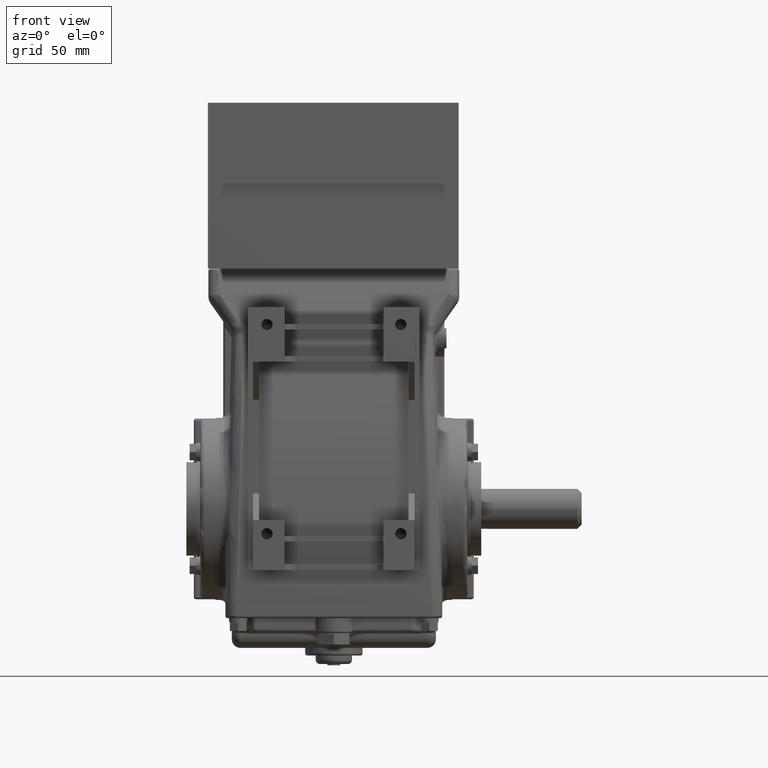
[diagram: clean part render]
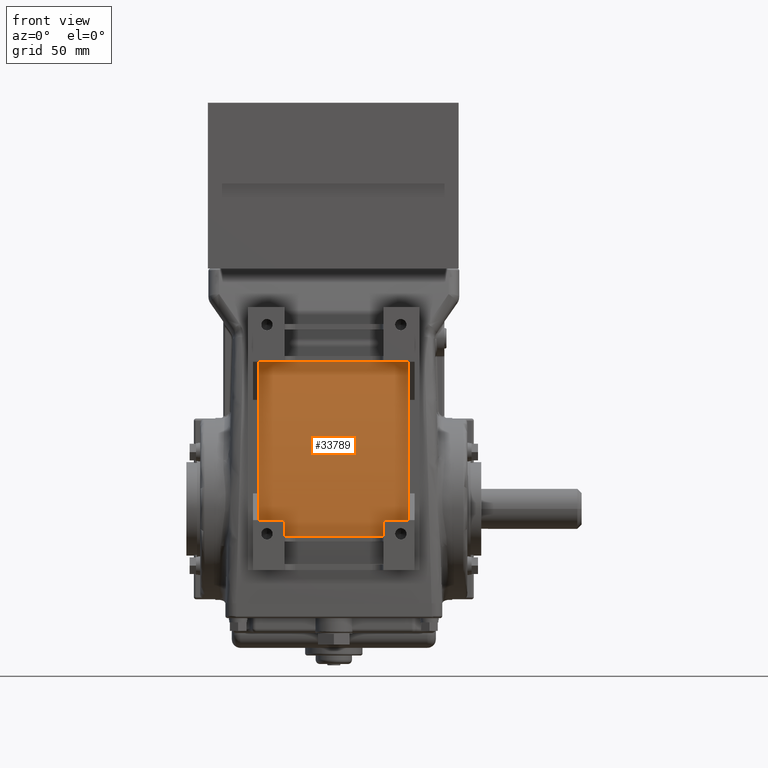
[diagram: same view with one face highlighted and labeled with its STEP entity id]
A machine part, front view. The second image highlights one B-rep face of the part: STEP entity #33789.
In plain terms, the highlighted cylindrical surface (partial cylindrical patch) has radius 634.291 mm, axis along (-1, -0, -0).
Its self-contained STEP definition (entity closure, byte-faithful):
#33388 = EDGE_CURVE ( 'NONE', #33470, #33398, #39204, .T. ) ;
#33398 = VERTEX_POINT ( 'NONE', #39265 ) ;
#33400 = EDGE_CURVE ( 'NONE', #33398, #33401, #39264, .T. ) ;
#33401 = VERTEX_POINT ( 'NONE', #39260 ) ;
#33434 = EDGE_CURVE ( 'NONE', #33459, #33470, #39332, .T. ) ;
#33443 = VERTEX_POINT ( 'NONE', #39405 ) ;
#33445 = EDGE_CURVE ( 'NONE', #33443, #33459, #39403, .T. ) ;
#33459 = VERTEX_POINT ( 'NONE', #39422 ) ;
#33470 = VERTEX_POINT ( 'NONE', #39490 ) ;
#33471 = EDGE_CURVE ( 'NONE', #33555, #33497, #39488, .T. ) ;
#33497 = VERTEX_POINT ( 'NONE', #39527 ) ;
#33499 = EDGE_CURVE ( 'NONE', #33497, #33443, #39585, .T. ) ;
#33525 = EDGE_CURVE ( 'NONE', #33401, #33545, #39636, .T. ) ;
#33545 = VERTEX_POINT ( 'NONE', #39696 ) ;
#33547 = EDGE_CURVE ( 'NONE', #33545, #33555, #39694, .T. ) ;
#33555 = VERTEX_POINT ( 'NONE', #39717 ) ;
#33730 = EDGE_LOOP ( 'NONE', ( #33790, #33791, #33792, #33793, #33794, #33795, #33796, #33797 ) ) ;
#33789 = ADVANCED_FACE ( 'NONE', ( #40514 ), #40532, .T. ) ;
#33790 = ORIENTED_EDGE ( 'NONE', *, *, #33525, .F. ) ;
#33791 = ORIENTED_EDGE ( 'NONE', *, *, #33400, .F. ) ;
#33792 = ORIENTED_EDGE ( 'NONE', *, *, #33388, .F. ) ;
#33793 = ORIENTED_EDGE ( 'NONE', *, *, #33434, .F. ) ;
#33794 = ORIENTED_EDGE ( 'NONE', *, *, #33445, .F. ) ;
#33795 = ORIENTED_EDGE ( 'NONE', *, *, #33499, .F. ) ;
#33796 = ORIENTED_EDGE ( 'NONE', *, *, #33471, .F. ) ;
#33797 = ORIENTED_EDGE ( 'NONE', *, *, #33547, .F. ) ;
#39188 = DIRECTION ( 'NONE',  ( 0.0000000000000000000, 0.0000000000000000000, 1.000000000000000000 ) ) ;
#39189 = DIRECTION ( 'NONE',  ( 1.000000000000000000, -0.0000000000000000000, -0.0000000000000000000 ) ) ;
#39190 = CARTESIAN_POINT ( 'NONE',  ( 1.164999999999998700, 22.61651865260651900, -1.693061335602180400 ) ) ;
#39191 = AXIS2_PLACEMENT_3D ( 'NONE', #39190, #39189, #39188 ) ;
#39204 = CIRCLE ( 'NONE', #39191, 24.97207876783562200 ) ;
#39260 = CARTESIAN_POINT ( 'NONE',  ( -1.165000000000001600, -2.333346673892669400, -0.6400000000000002400 ) ) ;
#39261 = DIRECTION ( 'NONE',  ( -1.000000000000000000, -0.0000000000000000000, -0.0000000000000000000 ) ) ;
#39262 = VECTOR ( 'NONE', #39261, 39.37007874015748100 ) ;
#39263 = CARTESIAN_POINT ( 'NONE',  ( 2.949999999999999700, -2.333346673892669400, -0.6400000000000007900 ) ) ;
#39264 = LINE ( 'NONE', #39263, #39262 ) ;
#39265 = CARTESIAN_POINT ( 'NONE',  ( 1.164999999999998700, -2.333346673892669400, -0.6400000000000007900 ) ) ;
#39329 = DIRECTION ( 'NONE',  ( -1.000000000000000000, -0.0000000000000000000, -0.0000000000000000000 ) ) ;
#39330 = VECTOR ( 'NONE', #39329, 39.37007874015748100 ) ;
#39331 = CARTESIAN_POINT ( 'NONE',  ( 2.949999999999999700, -2.314693889280502200, -0.2650000000000008500 ) ) ;
#39332 = LINE ( 'NONE', #39331, #39330 ) ;
#39399 = DIRECTION ( 'NONE',  ( 7.657726909095146700E-017, 0.0000000000000000000, 1.000000000000000000 ) ) ;
#39400 = DIRECTION ( 'NONE',  ( 1.000000000000000000, -0.0000000000000000000, -7.333820117219497200E-017 ) ) ;
#39401 = CARTESIAN_POINT ( 'NONE',  ( 1.759999999999998700, 22.61651865260651900, -1.693061335602180400 ) ) ;
#39402 = AXIS2_PLACEMENT_3D ( 'NONE', #39401, #39400, #39399 ) ;
#39403 = CIRCLE ( 'NONE', #39402, 24.97207876783562200 ) ;
#39405 = CARTESIAN_POINT ( 'NONE',  ( 1.759999999999998900, -1.818101804001940100, 3.459999999999999100 ) ) ;
#39422 = CARTESIAN_POINT ( 'NONE',  ( 1.759999999999998700, -2.314693889280502200, -0.2650000000000008500 ) ) ;
#39484 = DIRECTION ( 'NONE',  ( -2.187921974027184900E-016, 0.0000000000000000000, -1.000000000000000000 ) ) ;
#39485 = DIRECTION ( 'NONE',  ( -1.000000000000000000, -0.0000000000000000000, 2.200146035165849200E-016 ) ) ;
#39486 = CARTESIAN_POINT ( 'NONE',  ( -1.760000000000002000, 22.61651865260651900, -1.693061335602180400 ) ) ;
#39487 = AXIS2_PLACEMENT_3D ( 'NONE', #39486, #39485, #39484 ) ;
#39488 = CIRCLE ( 'NONE', #39487, 24.97207876783562200 ) ;
#39490 = CARTESIAN_POINT ( 'NONE',  ( 1.164999999999998700, -2.314693889280502200, -0.2650000000000008500 ) ) ;
#39527 = CARTESIAN_POINT ( 'NONE',  ( -1.760000000000000500, -1.818101804001940100, 3.459999999999999100 ) ) ;
#39582 = DIRECTION ( 'NONE',  ( 1.000000000000000000, 0.0000000000000000000, 0.0000000000000000000 ) ) ;
#39583 = VECTOR ( 'NONE', #39582, 39.37007874015748100 ) ;
#39584 = CARTESIAN_POINT ( 'NONE',  ( 2.950000000000000600, -1.818101804001940100, 3.459999999999999100 ) ) ;
#39585 = LINE ( 'NONE', #39584, #39583 ) ;
#39632 = DIRECTION ( 'NONE',  ( -7.274840563640389200E-016, 0.0000000000000000000, -1.000000000000000000 ) ) ;
#39633 = DIRECTION ( 'NONE',  ( -1.000000000000000000, -0.0000000000000000000, 7.284927983104709800E-016 ) ) ;
#39634 = CARTESIAN_POINT ( 'NONE',  ( -1.165000000000002500, 22.61651865260651900, -1.693061335602180400 ) ) ;
#39635 = AXIS2_PLACEMENT_3D ( 'NONE', #39634, #39633, #39632 ) ;
#39636 = CIRCLE ( 'NONE', #39635, 24.97207876783562200 ) ;
#39691 = DIRECTION ( 'NONE',  ( -1.000000000000000000, -0.0000000000000000000, -0.0000000000000000000 ) ) ;
#39692 = VECTOR ( 'NONE', #39691, 39.37007874015748100 ) ;
#39693 = CARTESIAN_POINT ( 'NONE',  ( 2.950000000000000600, -2.314693889280502200, -0.2650000000000019600 ) ) ;
#39694 = LINE ( 'NONE', #39693, #39692 ) ;
#39696 = CARTESIAN_POINT ( 'NONE',  ( -1.165000000000001400, -2.314693889280502200, -0.2650000000000019600 ) ) ;
#39717 = CARTESIAN_POINT ( 'NONE',  ( -1.760000000000001800, -2.314693889280502200, -0.2650000000000005700 ) ) ;
#40514 = FACE_OUTER_BOUND ( 'NONE', #33730, .T. ) ;
#40527 = DIRECTION ( 'NONE',  ( 0.0000000000000000000, 0.0000000000000000000, 1.000000000000000000 ) ) ;
#40528 = DIRECTION ( 'NONE',  ( -1.000000000000000000, -0.0000000000000000000, -0.0000000000000000000 ) ) ;
#40529 = CARTESIAN_POINT ( 'NONE',  ( 2.949999999999999700, 22.61651865260651900, -1.693061335602180400 ) ) ;
#40530 = AXIS2_PLACEMENT_3D ( 'NONE', #40529, #40528, #40527 ) ;
#40532 = CYLINDRICAL_SURFACE ( 'NONE', #40530, 24.97207876783562200 ) ;